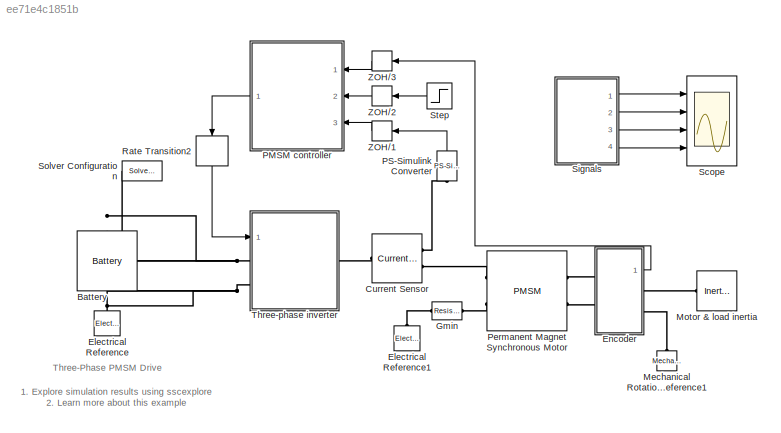
MODEL slx_ee71e4c1851b
KIND model
CONFIG AbsTol = 1e-3
CONFIG EnableMultiTasking = on
CONFIG FixedStep = auto
CONFIG MaxStep = auto
CONFIG MinStep = auto
CONFIG PreLoadFcn = % Control parameters\nTs = 2e-6;   % Fundamental sample time\nfsw = 2e3;   % Switching frequency (Hz)\nfc = fsw*10; % Control loop frequency (Hz)\nTsc = 1/fc;  % Control loop sample time\n\n% PMSM parameters \nPM = 0.03; % Permanent magnet flux linkage\nLd = 2e-4;  % d-axis inductance\nLq = 2e-4;  % q-axis inductance\nL0 = 2e-4;  % 0-axis inductance\nRs = 0.013; % Stator resistance\nN = 6; % Number of pole pa...<+356ch>
CONFIG RelTol = 1e-3
CONFIG SampleTimeConstraint = Unconstrained
CONFIG Solver = ode23t
CONFIG SolverName = ode23t
CONFIG StartTime = 0.0
CONFIG StopTime = 0.6
BLOCK [Reference] Battery  REF=ee_lib/Sources/Battery
  Ports = [0, 0, 0, 0, 0, 1, 1]
  SourceBlock = ee_lib/Sources/Battery
  SourceProductBaseCode = PS
  SourceProductName = Simscape Electrical
  SourceType = Battery
BLOCK [Reference] Current Sensor  REF=ee_lib/Sensors &
Transducers/Current Sensor
(Three-Phase)
  Ports = [0, 0, 0, 0, 0, 1, 2]
  SourceBlock = ee_lib/Sensors &\nTransducers/Current Sensor\n(Three-Phase)
  SourceProductBaseCode = PS
  SourceProductName = Simscape Electrical
  SourceType = Current Sensor\n(Three-Phase)
BLOCK [Reference] Electrical Reference  REF=fl_lib/Electrical/Electrical Elements/Electrical Reference
  Ports = [0, 0, 0, 0, 0, 1]
  SourceBlock = fl_lib/Electrical/Electrical Elements/Electrical Reference
  SourceProductBaseCode = SS
  SourceProductName = Simscape
  SourceType = Electrical Reference
BLOCK [Reference] Electrical Reference1  REF=fl_lib/Electrical/Electrical Elements/Electrical Reference
  Ports = [0, 0, 0, 0, 0, 1]
  SourceBlock = fl_lib/Electrical/Electrical Elements/Electrical Reference
  SourceProductBaseCode = SS
  SourceProductName = Simscape
  SourceType = Electrical Reference
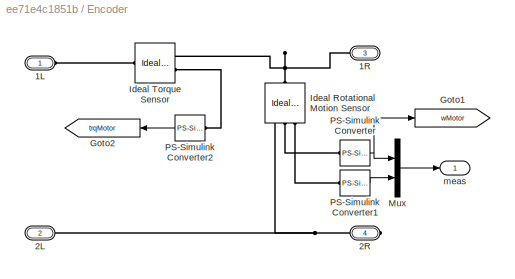
BLOCK [SubSystem] Encoder
  Ports = [0, 1, 0, 0, 0, 2, 2]
  RequestExecContextInheritance = off
BLOCK [PMIOPort] Encoder/1L
  Side = Left
BLOCK [PMIOPort] Encoder/1R
  Port = 3
  Side = Right
BLOCK [PMIOPort] Encoder/2L
  Port = 2
  Side = Left
BLOCK [PMIOPort] Encoder/2R
  Port = 4
  Side = Right
BLOCK [Goto] Encoder/Goto1
  GotoTag = wMotor
  TagVisibility = global
BLOCK [Goto] Encoder/Goto2
  GotoTag = trqMotor
  TagVisibility = global
BLOCK [Reference] Encoder/Ideal Rotational Motion Sensor  REF=fl_lib/Mechanical/Mechanical Sensors/Ideal Rotational
Motion Sensor
  Ports = [0, 0, 0, 0, 0, 1, 3]
  SourceBlock = fl_lib/Mechanical/Mechanical Sensors/Ideal Rotational\nMotion Sensor
  SourceProductBaseCode = SS
  SourceProductName = Simscape
  SourceType = Ideal Rotational\nMotion Sensor
BLOCK [Reference] Encoder/Ideal Torque Sensor  REF=fl_lib/Mechanical/Mechanical Sensors/Ideal Torque Sensor
  Ports = [0, 0, 0, 0, 0, 1, 2]
  SourceBlock = fl_lib/Mechanical/Mechanical Sensors/Ideal Torque Sensor
  SourceProductBaseCode = SS
  SourceProductName = Simscape
  SourceType = Ideal Torque Sensor
BLOCK [Mux] Encoder/Mux
  DisplayOption = bar
  Inputs = 2
  Ports = [2, 1]
BLOCK [Reference] Encoder/PS-Simulink Converter  REF=nesl_utility/PS-Simulink
Converter
  Ports = [0, 1, 0, 0, 0, 1]
  SourceBlock = nesl_utility/PS-Simulink\nConverter
  SourceProductBaseCode = SS
  SourceProductName = Simscape
  SourceType = PS-Simulink\nConverter
BLOCK [Reference] Encoder/PS-Simulink Converter1  REF=nesl_utility/PS-Simulink
Converter
  Ports = [0, 1, 0, 0, 0, 1]
  SourceBlock = nesl_utility/PS-Simulink\nConverter
  SourceProductBaseCode = SS
  SourceProductName = Simscape
  SourceType = PS-Simulink\nConverter
BLOCK [Reference] Encoder/PS-Simulink Converter2  REF=nesl_utility/PS-Simulink
Converter
  Ports = [0, 1, 0, 0, 0, 1]
  SourceBlock = nesl_utility/PS-Simulink\nConverter
  SourceProductBaseCode = SS
  SourceProductName = Simscape
  SourceType = PS-Simulink\nConverter
BLOCK [Outport] Encoder/meas
  IconDisplay = Port number
  VectorParamsAs1DForOutWhenUnconnected = off
BLOCK [Reference] Gmin  REF=fl_lib/Electrical/Electrical Elements/Resistor
  Ports = [0, 0, 0, 0, 0, 1, 1]
  SourceBlock = fl_lib/Electrical/Electrical Elements/Resistor
  SourceProductBaseCode = SS
  SourceProductName = Simscape
  SourceType = Resistor
BLOCK [Reference] Mechanical Rotational Reference1  REF=fl_lib/Mechanical/Rotational Elements/Mechanical
Rotational Reference
  Ports = [0, 0, 0, 0, 0, 1]
  SourceBlock = fl_lib/Mechanical/Rotational Elements/Mechanical\nRotational Reference
  SourceProductBaseCode = SS
  SourceProductName = Simscape
  SourceType = Mechanical\nRotational Reference
BLOCK [Reference] Motor & load inertia  REF=fl_lib/Mechanical/Rotational Elements/Inertia
  Ports = [0, 0, 0, 0, 0, 1]
  SourceBlock = fl_lib/Mechanical/Rotational Elements/Inertia
  SourceProductBaseCode = SS
  SourceProductName = Simscape
  SourceType = Inertia
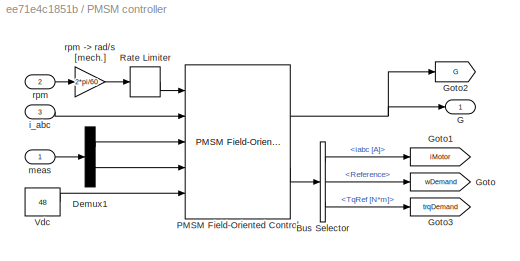
BLOCK [SubSystem] PMSM controller
  Ports = [3, 1]
  RequestExecContextInheritance = off
BLOCK [BusSelector] PMSM controller/Bus Selector
  OutputAsBus = off
  OutputSignals = iabc [A],Reference,TqRef [N*m]
  Ports = [1, 3]
BLOCK [Demux] PMSM controller/Demux1
  DisplayOption = bar
  Outputs = 2
  Ports = [1, 2]
BLOCK [Outport] PMSM controller/G
  IconDisplay = Port number
  VectorParamsAs1DForOutWhenUnconnected = off
BLOCK [Goto] PMSM controller/Goto
  GotoTag = wDemand
  TagVisibility = global
BLOCK [Goto] PMSM controller/Goto1
  GotoTag = iMotor
  TagVisibility = global
BLOCK [Goto] PMSM controller/Goto2
  GotoTag = G
  TagVisibility = global
BLOCK [Goto] PMSM controller/Goto3
  GotoTag = trqDemand
  TagVisibility = global
BLOCK [Reference] PMSM controller/PMSM Field-Oriented Control  REF=eePmsmFieldOrientedControl/PMSM Field-Oriented
Control
  Ports = [5, 2]
  SourceBlock = eePmsmFieldOrientedControl/PMSM Field-Oriented\nControl
  SourceProductBaseCode = PS
  SourceProductName = Simscape Electrical
  SourceType = PMSM Field-Oriented Control
BLOCK [RateLimiter] PMSM controller/Rate Limiter
  FallingSlewLimit = -Tmax/J
  RisingSlewLimit = Tmax/J
  SampleTimeMode = inherited
BLOCK [Constant] PMSM controller/Vdc
  SampleTime = Tsc
  Value = 48
BLOCK [Inport] PMSM controller/i_abc
  IconDisplay = Port number
  Port = 3
BLOCK [Inport] PMSM controller/meas
  IconDisplay = Port number
BLOCK [Inport] PMSM controller/rpm
  IconDisplay = Port number
  Port = 2
BLOCK [Gain] PMSM controller/rpm -> rad//s [mech.]
  Gain = 2*pi/60
  OutDataTypeStr = Inherit: Inherit via internal rule
  ParamDataTypeStr = Inherit: Inherit via internal rule
  SaturateOnIntegerOverflow = off
BLOCK [Reference] PS-Simulink Converter  REF=nesl_utility/PS-Simulink
Converter
  Ports = [0, 1, 0, 0, 0, 1]
  SourceBlock = nesl_utility/PS-Simulink\nConverter
  SourceProductBaseCode = SS
  SourceProductName = Simscape
  SourceType = PS-Simulink\nConverter
BLOCK [Reference] Permanent Magnet Synchronous Motor  REF=ee_lib/Electromechanical/Permanent Magnet/PMSM
  Ports = [0, 0, 0, 0, 0, 2, 2]
  SourceBlock = ee_lib/Electromechanical/Permanent Magnet/PMSM
  SourceProductBaseCode = PS
  SourceProductName = Simscape Electrical
  SourceType = PMSM
BLOCK [RateTransition] Rate Transition2
  OutPortSampleTime = Ts
BLOCK [Scope] Scope
  Floating = off
  NumInputPorts = 4
  Ports = [4]
  ScopeSpecificationString = Simulink.scopes.TimeScopeBlockCfg('CurrentConfiguration', extmgr.ConfigurationSet(extmgr.Configuration('Core','General UI',true),extmgr.Configuration('Core','Source UI',true),extmgr.Configuration('Sources','WiredSimulink',true,'DataLoggingSaveFormat','StructureWithTime','DataLoggingMaxPoints','50000','DataLoggingDecimation','10','DataLoggingDecimateData',true,'DataLoggingLimitDataPoints',true),ext...<+3965ch>
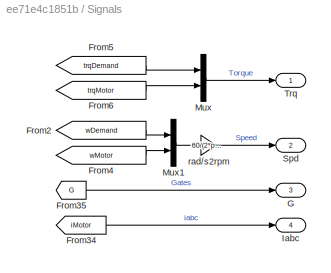
BLOCK [SubSystem] Signals 
  Ports = [0, 4]
  RequestExecContextInheritance = off
BLOCK [From] Signals /From2
  GotoTag = wDemand
  TagVisibility = global
BLOCK [From] Signals /From34
  GotoTag = iMotor
  TagVisibility = global
BLOCK [From] Signals /From35
  GotoTag = G
  TagVisibility = global
BLOCK [From] Signals /From4
  GotoTag = wMotor
  TagVisibility = global
BLOCK [From] Signals /From5
  GotoTag = trqDemand
  TagVisibility = global
BLOCK [From] Signals /From6
  GotoTag = trqMotor
  TagVisibility = global
BLOCK [Outport] Signals /G
  IconDisplay = Port number
  Port = 3
  VectorParamsAs1DForOutWhenUnconnected = off
BLOCK [Outport] Signals /Iabc
  IconDisplay = Port number
  Port = 4
  VectorParamsAs1DForOutWhenUnconnected = off
BLOCK [Mux] Signals /Mux
  DisplayOption = bar
  Inputs = 2
  Ports = [2, 1]
BLOCK [Mux] Signals /Mux1
  DisplayOption = bar
  Inputs = 2
  Ports = [2, 1]
BLOCK [Outport] Signals /Spd
  IconDisplay = Port number
  Port = 2
  VectorParamsAs1DForOutWhenUnconnected = off
BLOCK [Outport] Signals /Trq
  IconDisplay = Port number
  VectorParamsAs1DForOutWhenUnconnected = off
BLOCK [Gain] Signals /rad//s2rpm
  Gain = 60/(2*pi)
  OutDataTypeStr = Inherit: Inherit via internal rule
  ParamDataTypeStr = Inherit: Inherit via internal rule
  SaturateOnIntegerOverflow = off
BLOCK [Reference] Solver Configuration  REF=nesl_utility/Solver
Configuration
  Ports = [0, 0, 0, 0, 0, 0, 1]
  SourceBlock = nesl_utility/Solver\nConfiguration
  SourceProductBaseCode = SS
  SourceProductName = Simscape
  SourceType = Solver\nConfiguration
BLOCK [Step] Step
  After = 500
  SampleTime = 0
  Time = 0.1
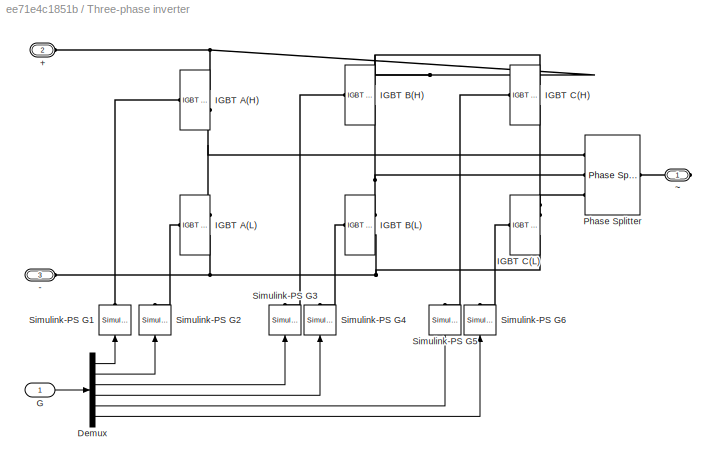
BLOCK [SubSystem] Three-phase inverter
  Ports = [1, 0, 0, 0, 0, 2, 1]
  RequestExecContextInheritance = off
BLOCK [PMIOPort] Three-phase inverter/+
  Port = 2
  Side = Left
  Tag = PMCPort
BLOCK [PMIOPort] Three-phase inverter/-
  Port = 3
  Side = Left
  Tag = PMCPort
BLOCK [Demux] Three-phase inverter/Demux
  DisplayOption = bar
  Outputs = 6
  Ports = [1, 6]
BLOCK [Inport] Three-phase inverter/G
  IconDisplay = Port number
BLOCK [Reference] Three-phase inverter/IGBT A(H)  REF=ee_lib/Semiconductors &
Converters/IGBT
(Ideal,
Switching)
  Ports = [0, 0, 0, 0, 0, 1, 2]
  SourceBlock = ee_lib/Semiconductors &\nConverters/IGBT\n(Ideal,\nSwitching)
  SourceProductBaseCode = PS
  SourceProductName = Simscape Electrical
  SourceType = IGBT\n(Ideal,\nSwitching)
BLOCK [Reference] Three-phase inverter/IGBT A(L)  REF=ee_lib/Semiconductors &
Converters/IGBT
(Ideal,
Switching)
  Ports = [0, 0, 0, 0, 0, 1, 2]
  SourceBlock = ee_lib/Semiconductors &\nConverters/IGBT\n(Ideal,\nSwitching)
  SourceProductBaseCode = PS
  SourceProductName = Simscape Electrical
  SourceType = IGBT\n(Ideal,\nSwitching)
BLOCK [Reference] Three-phase inverter/IGBT B(H)  REF=ee_lib/Semiconductors &
Converters/IGBT
(Ideal,
Switching)
  Ports = [0, 0, 0, 0, 0, 1, 2]
  SourceBlock = ee_lib/Semiconductors &\nConverters/IGBT\n(Ideal,\nSwitching)
  SourceProductBaseCode = PS
  SourceProductName = Simscape Electrical
  SourceType = IGBT\n(Ideal,\nSwitching)
BLOCK [Reference] Three-phase inverter/IGBT B(L)  REF=ee_lib/Semiconductors &
Converters/IGBT
(Ideal,
Switching)
  Ports = [0, 0, 0, 0, 0, 1, 2]
  SourceBlock = ee_lib/Semiconductors &\nConverters/IGBT\n(Ideal,\nSwitching)
  SourceProductBaseCode = PS
  SourceProductName = Simscape Electrical
  SourceType = IGBT\n(Ideal,\nSwitching)
BLOCK [Reference] Three-phase inverter/IGBT C(H)  REF=ee_lib/Semiconductors &
Converters/IGBT
(Ideal,
Switching)
  Ports = [0, 0, 0, 0, 0, 1, 2]
  SourceBlock = ee_lib/Semiconductors &\nConverters/IGBT\n(Ideal,\nSwitching)
  SourceProductBaseCode = PS
  SourceProductName = Simscape Electrical
  SourceType = IGBT\n(Ideal,\nSwitching)
BLOCK [Reference] Three-phase inverter/IGBT C(L)  REF=ee_lib/Semiconductors &
Converters/IGBT
(Ideal,
Switching)
  Ports = [0, 0, 0, 0, 0, 1, 2]
  SourceBlock = ee_lib/Semiconductors &\nConverters/IGBT\n(Ideal,\nSwitching)
  SourceProductBaseCode = PS
  SourceProductName = Simscape Electrical
  SourceType = IGBT\n(Ideal,\nSwitching)
BLOCK [Reference] Three-phase inverter/Phase Splitter  REF=ee_lib/Connectors &
References/Phase Splitter
  Ports = [0, 0, 0, 0, 0, 1, 3]
  SourceBlock = ee_lib/Connectors &\nReferences/Phase Splitter
  SourceProductBaseCode = PS
  SourceProductName = Simscape Electrical
  SourceType = Phase Splitter
BLOCK [Reference] Three-phase inverter/Simulink-PS G1  REF=nesl_utility/Simulink-PS
Converter
  Ports = [1, 0, 0, 0, 0, 0, 1]
  SourceBlock = nesl_utility/Simulink-PS\nConverter
  SourceProductBaseCode = SS
  SourceProductName = Simscape
  SourceType = Simulink-PS\nConverter
BLOCK [Reference] Three-phase inverter/Simulink-PS G2  REF=nesl_utility/Simulink-PS
Converter
  Ports = [1, 0, 0, 0, 0, 0, 1]
  SourceBlock = nesl_utility/Simulink-PS\nConverter
  SourceProductBaseCode = SS
  SourceProductName = Simscape
  SourceType = Simulink-PS\nConverter
BLOCK [Reference] Three-phase inverter/Simulink-PS G3  REF=nesl_utility/Simulink-PS
Converter
  Ports = [1, 0, 0, 0, 0, 0, 1]
  SourceBlock = nesl_utility/Simulink-PS\nConverter
  SourceProductBaseCode = SS
  SourceProductName = Simscape
  SourceType = Simulink-PS\nConverter
BLOCK [Reference] Three-phase inverter/Simulink-PS G4  REF=nesl_utility/Simulink-PS
Converter
  Ports = [1, 0, 0, 0, 0, 0, 1]
  SourceBlock = nesl_utility/Simulink-PS\nConverter
  SourceProductBaseCode = SS
  SourceProductName = Simscape
  SourceType = Simulink-PS\nConverter
BLOCK [Reference] Three-phase inverter/Simulink-PS G5  REF=nesl_utility/Simulink-PS
Converter
  Ports = [1, 0, 0, 0, 0, 0, 1]
  SourceBlock = nesl_utility/Simulink-PS\nConverter
  SourceProductBaseCode = SS
  SourceProductName = Simscape
  SourceType = Simulink-PS\nConverter
BLOCK [Reference] Three-phase inverter/Simulink-PS G6  REF=nesl_utility/Simulink-PS
Converter
  Ports = [1, 0, 0, 0, 0, 0, 1]
  SourceBlock = nesl_utility/Simulink-PS\nConverter
  SourceProductBaseCode = SS
  SourceProductName = Simscape
  SourceType = Simulink-PS\nConverter
BLOCK [PMIOPort] Three-phase inverter/~
  Side = Right
  Tag = PMCPort
BLOCK [ZeroOrderHold] ZOH//1
  SampleTime = Tsc
BLOCK [ZeroOrderHold] ZOH//2
  SampleTime = Tsc
BLOCK [ZeroOrderHold] ZOH//3
  SampleTime = Tsc
ANNOTATION (root): 1. Explore simulation results using sscexplore 2. Learn more about this example
ANNOTATION (root): Three-Phase PMSM Drive
LINE Encoder/Mux:1 -> Encoder/meas:1
LINE Encoder/PS-Simulink Converter1:1 -> Encoder/Mux:2
LINE Encoder/PS-Simulink Converter2:1 -> Encoder/Goto2:1
NET Encoder/PS-Simulink Converter:1 -> Encoder/Goto1:1, Encoder/Mux:1
LINE Encoder:1 -> ZOH//3:1
LINE PMSM controller/Bus Selector:1 -> PMSM controller/Goto1:1
LINE PMSM controller/Bus Selector:2 -> PMSM controller/Goto:1
LINE PMSM controller/Bus Selector:3 -> PMSM controller/Goto3:1
LINE PMSM controller/Demux1:1 -> PMSM controller/PMSM Field-Oriented Control:3
LINE PMSM controller/Demux1:2 -> PMSM controller/PMSM Field-Oriented Control:4
NET PMSM controller/PMSM Field-Oriented Control:1 -> PMSM controller/G:1, PMSM controller/Goto2:1
LINE PMSM controller/PMSM Field-Oriented Control:2 -> PMSM controller/Bus Selector:1
LINE PMSM controller/Rate Limiter:1 -> PMSM controller/PMSM Field-Oriented Control:1
LINE PMSM controller/Vdc:1 -> PMSM controller/PMSM Field-Oriented Control:5
LINE PMSM controller/i_abc:1 -> PMSM controller/PMSM Field-Oriented Control:2
LINE PMSM controller/meas:1 -> PMSM controller/Demux1:1
LINE PMSM controller/rpm -> rad//s [mech.]:1 -> PMSM controller/Rate Limiter:1
LINE PMSM controller/rpm:1 -> PMSM controller/rpm -> rad//s [mech.]:1
LINE PMSM controller:1 -> Rate Transition2:1
LINE PS-Simulink Converter:1 -> ZOH//1:1
LINE Rate Transition2:1 -> Three-phase inverter:1
LINE Signals /From2:1 -> Signals /Mux1:1
LINE Signals /From34:1 -> Signals /Iabc:1
LINE Signals /From35:1 -> Signals /G:1
LINE Signals /From4:1 -> Signals /Mux1:2
LINE Signals /From5:1 -> Signals /Mux:1
LINE Signals /From6:1 -> Signals /Mux:2
LINE Signals /Mux1:1 -> Signals /rad//s2rpm:1
LINE Signals /Mux:1 -> Signals /Trq:1
LINE Signals /rad//s2rpm:1 -> Signals /Spd:1
LINE Signals :1 -> Scope:1
LINE Signals :2 -> Scope:2
LINE Signals :3 -> Scope:3
LINE Signals :4 -> Scope:4
LINE Step:1 -> ZOH//2:1
LINE Three-phase inverter/Demux:1 -> Three-phase inverter/Simulink-PS G1:1
LINE Three-phase inverter/Demux:2 -> Three-phase inverter/Simulink-PS G2:1
LINE Three-phase inverter/Demux:3 -> Three-phase inverter/Simulink-PS G3:1
LINE Three-phase inverter/Demux:4 -> Three-phase inverter/Simulink-PS G4:1
LINE Three-phase inverter/Demux:5 -> Three-phase inverter/Simulink-PS G5:1
LINE Three-phase inverter/Demux:6 -> Three-phase inverter/Simulink-PS G6:1
LINE Three-phase inverter/G:1 -> Three-phase inverter/Demux:1
LINE ZOH//1:1 -> PMSM controller:3
LINE ZOH//2:1 -> PMSM controller:2
LINE ZOH//3:1 -> PMSM controller:1
PNET net1: Battery:LConn1 -- Solver Configuration:RConn1 -- Three-phase inverter:LConn1
PNET net2: Battery:RConn1 -- Electrical Reference:LConn1 -- Three-phase inverter:LConn2
PLINE Current Sensor:LConn1 -- Three-phase inverter:RConn1
PLINE Current Sensor:RConn1 -- PS-Simulink Converter:LConn1
PLINE Current Sensor:RConn2 -- Permanent Magnet Synchronous Motor:LConn1
PLINE Electrical Reference1:LConn1 -- Gmin:LConn1
PLINE Encoder/1L:RConn1 -- Encoder/Ideal Torque Sensor:LConn1
PNET net3: Encoder/1R:RConn1 -- Encoder/Ideal Rotational Motion Sensor:LConn1 -- Encoder/Ideal Torque Sensor:RConn1
PNET net4: Encoder/2L:RConn1 -- Encoder/2R:RConn1 -- Encoder/Ideal Rotational Motion Sensor:RConn1
PLINE Encoder/Ideal Rotational Motion Sensor:RConn2 -- Encoder/PS-Simulink Converter:LConn1
PLINE Encoder/Ideal Rotational Motion Sensor:RConn3 -- Encoder/PS-Simulink Converter1:LConn1
PLINE Encoder/Ideal Torque Sensor:RConn2 -- Encoder/PS-Simulink Converter2:LConn1
PLINE Encoder:LConn1 -- Permanent Magnet Synchronous Motor:RConn1
PLINE Encoder:LConn2 -- Permanent Magnet Synchronous Motor:RConn2
PLINE Encoder:RConn1 -- Motor & load inertia:LConn1
PLINE Encoder:RConn2 -- Mechanical Rotational Reference1:LConn1
PLINE Gmin:RConn1 -- Permanent Magnet Synchronous Motor:LConn2
PNET net5: Three-phase inverter/+:RConn1 -- Three-phase inverter/IGBT A(H):RConn1 -- Three-phase inverter/IGBT B(H):RConn1 -- Three-phase inverter/IGBT C(H):RConn1
PNET net6: Three-phase inverter/-:RConn1 -- Three-phase inverter/IGBT A(L):RConn2 -- Three-phase inverter/IGBT B(L):RConn2 -- Three-phase inverter/IGBT C(L):RConn2
PLINE Three-phase inverter/IGBT A(H):LConn1 -- Three-phase inverter/Simulink-PS G1:RConn1
PNET net7: Three-phase inverter/IGBT A(H):RConn2 -- Three-phase inverter/IGBT A(L):RConn1 -- Three-phase inverter/Phase Splitter:RConn1
PLINE Three-phase inverter/IGBT A(L):LConn1 -- Three-phase inverter/Simulink-PS G2:RConn1
PLINE Three-phase inverter/IGBT B(H):LConn1 -- Three-phase inverter/Simulink-PS G3:RConn1
PNET net8: Three-phase inverter/IGBT B(H):RConn2 -- Three-phase inverter/IGBT B(L):RConn1 -- Three-phase inverter/Phase Splitter:RConn2
PLINE Three-phase inverter/IGBT B(L):LConn1 -- Three-phase inverter/Simulink-PS G4:RConn1
PLINE Three-phase inverter/IGBT C(H):LConn1 -- Three-phase inverter/Simulink-PS G5:RConn1
PNET net9: Three-phase inverter/IGBT C(H):RConn2 -- Three-phase inverter/IGBT C(L):RConn1 -- Three-phase inverter/Phase Splitter:RConn3
PLINE Three-phase inverter/IGBT C(L):LConn1 -- Three-phase inverter/Simulink-PS G6:RConn1
PLINE Three-phase inverter/Phase Splitter:LConn1 -- Three-phase inverter/~:RConn1
note: NET lines group one-source signal fan-out (src -> all destinations, sorted); 1:1 wires keep LINE; PNET lines group multi-terminal physical nets as a canonical sorted terminal list (undirected conserving connections); 2-terminal nets keep the pairwise PLINE form
